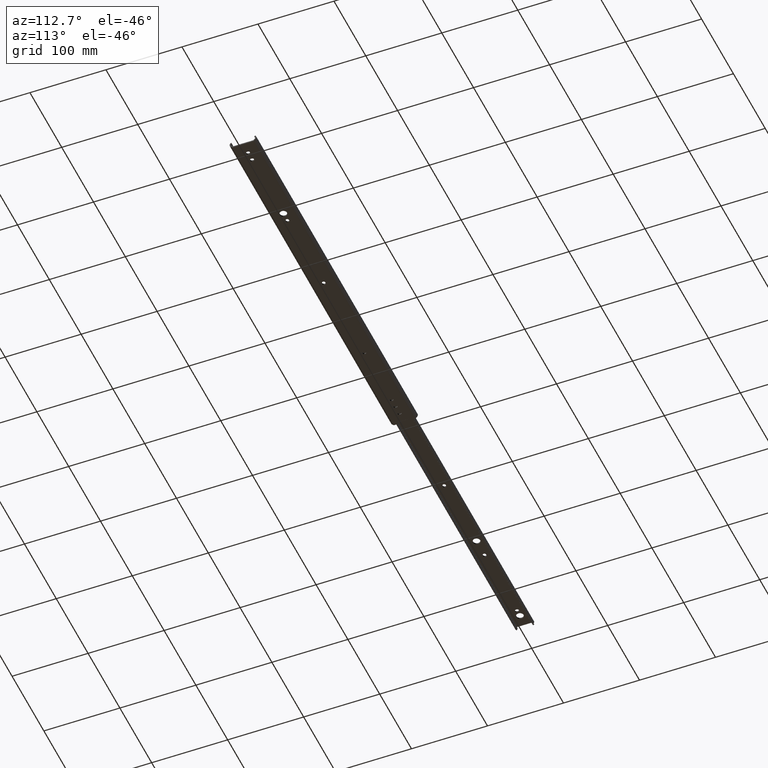
[diagram: clean part render]
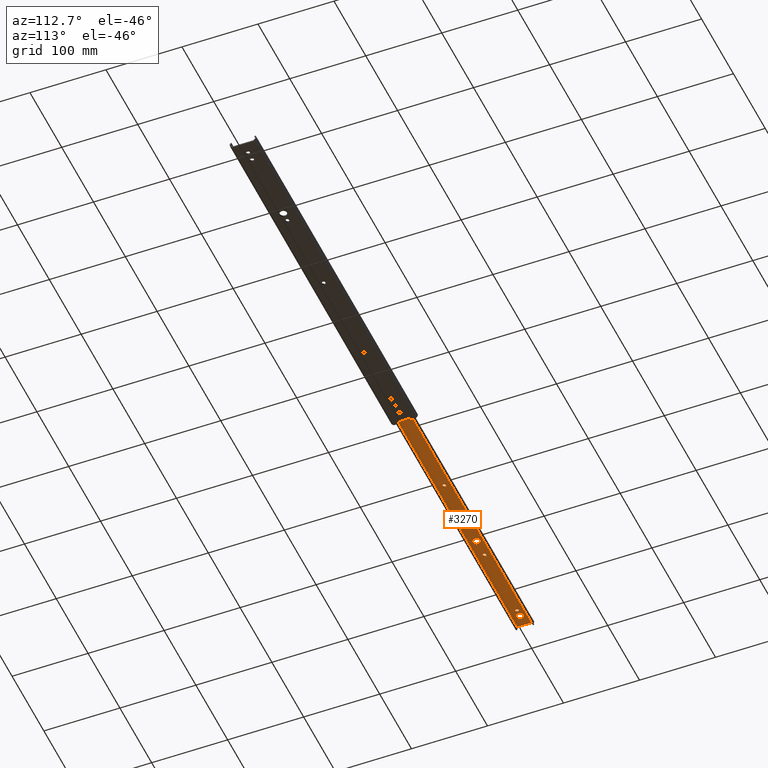
[diagram: same view with one face highlighted and labeled with its STEP entity id]
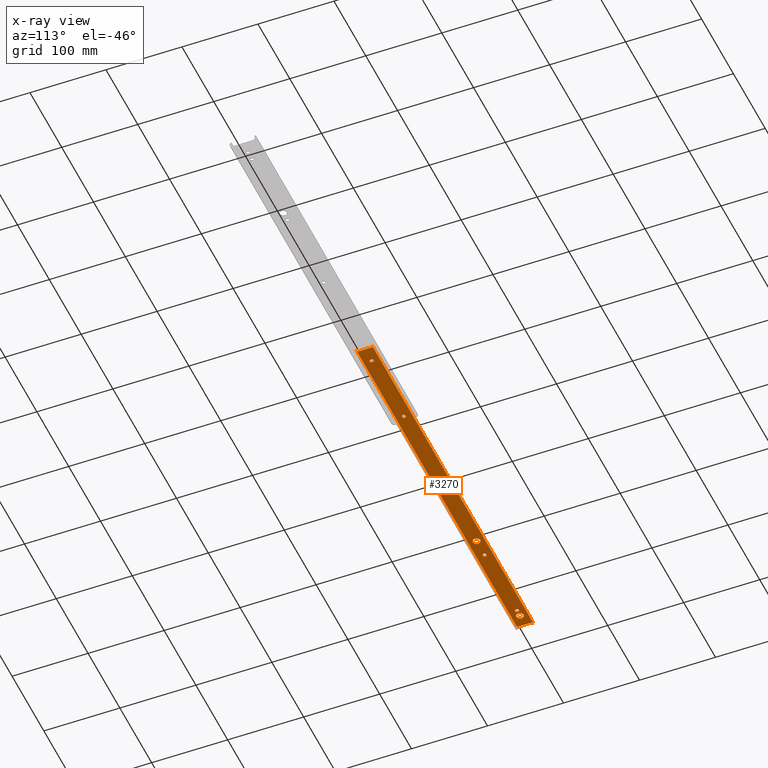
[diagram: x-ray of the same camera — body ghosted, the highlighted face saturated]
A machine part, auxiliary view. The second image highlights one B-rep face of the part: STEP entity #3270.
The next image is the same camera in x-ray: the body ghosted, the highlighted face saturated — about 0% of this face is hidden behind the body in this view.
In plain terms, the highlighted planar face has unit normal (0, 0, 1).
Its self-contained STEP definition (entity closure, byte-faithful):
#5 = AXIS2_PLACEMENT_3D ( 'NONE', #2055, #152, #2364 ) ;
#19 = VERTEX_POINT ( 'NONE', #2916 ) ;
#59 = ORIENTED_EDGE ( 'NONE', *, *, #1475, .T. ) ;
#63 = CARTESIAN_POINT ( 'NONE',  ( 380.5999999999999700, 2.249999999999947200, -1.599999999999894800 ) ) ;
#72 = VECTOR ( 'NONE', #2664, 1000.000000000000000 ) ;
#91 = CARTESIAN_POINT ( 'NONE',  ( 0.0000000000000000000, 0.0000000000000000000, -1.599999999999893100 ) ) ;
#92 = VERTEX_POINT ( 'NONE', #785 ) ;
#112 = FACE_BOUND ( 'NONE', #3328, .T. ) ;
#122 = LINE ( 'NONE', #3139, #1618 ) ;
#125 = CARTESIAN_POINT ( 'NONE',  ( 254.4000000000000100, 2.249999999999965800, -1.599999999999894800 ) ) ;
#127 = AXIS2_PLACEMENT_3D ( 'NONE', #1714, #3367, #3952 ) ;
#140 = EDGE_CURVE ( 'NONE', #2532, #3894, #1127, .T. ) ;
#152 = DIRECTION ( 'NONE',  ( 0.0000000000000000000, 0.0000000000000000000, 1.000000000000000000 ) ) ;
#167 = CARTESIAN_POINT ( 'NONE',  ( 505.0000000000000000, 2.249999999999947200, -1.599999999999893100 ) ) ;
#188 = CARTESIAN_POINT ( 'NONE',  ( 484.8499999999999700, 0.0000000000000000000, -1.599999999999893100 ) ) ;
#229 = ORIENTED_EDGE ( 'NONE', *, *, #3035, .T. ) ;
#236 = CARTESIAN_POINT ( 'NONE',  ( 254.4000000000000100, -2.250000000000033800, -1.599999999999893100 ) ) ;
#239 = CARTESIAN_POINT ( 'NONE',  ( 505.0000000000000000, 9.799999999999993600, -1.599999999999893100 ) ) ;
#253 = CARTESIAN_POINT ( 'NONE',  ( 20.65000000000000200, 0.0000000000000000000, -1.599999999999893100 ) ) ;
#254 = CIRCLE ( 'NONE', #1921, 2.250000000000001800 ) ;
#256 = LINE ( 'NONE', #3753, #1854 ) ;
#258 = DIRECTION ( 'NONE',  ( -1.000000000000000000, -0.0000000000000000000, 0.0000000000000000000 ) ) ;
#281 = CARTESIAN_POINT ( 'NONE',  ( 505.0000000000000000, -2.250000000000052400, -1.599999999999893100 ) ) ;
#288 = CARTESIAN_POINT ( 'NONE',  ( 27.65000000000000200, 0.3999999999999960800, -1.599999999999894800 ) ) ;
#293 = EDGE_CURVE ( 'NONE', #1215, #1896, #3159, .T. ) ;
#295 = CARTESIAN_POINT ( 'NONE',  ( 15.90000000000000000, 0.0000000000000000000, -1.599999999999893100 ) ) ;
#322 = EDGE_CURVE ( 'NONE', #2313, #2024, #1366, .T. ) ;
#326 = ORIENTED_EDGE ( 'NONE', *, *, #140, .T. ) ;
#335 = VERTEX_POINT ( 'NONE', #2302 ) ;
#336 = EDGE_LOOP ( 'NONE', ( #229, #1002, #1783, #1919, #452, #2622, #3174, #2795, #3489, #1497 ) ) ;
#352 = DIRECTION ( 'NONE',  ( 0.0000000000000000000, 0.0000000000000000000, 1.000000000000000000 ) ) ;
#401 = VECTOR ( 'NONE', #3581, 1000.000000000000000 ) ;
#408 = CIRCLE ( 'NONE', #2540, 2.250000000000001800 ) ;
#422 = CARTESIAN_POINT ( 'NONE',  ( 503.3999999999999800, 9.799999999999993600, -1.599999999999894800 ) ) ;
#431 = CARTESIAN_POINT ( 'NONE',  ( 152.4000000000000100, 0.0000000000000000000, -1.599999999999893100 ) ) ;
#452 = ORIENTED_EDGE ( 'NONE', *, *, #586, .F. ) ;
#470 = DIRECTION ( 'NONE',  ( 0.0000000000000000000, 1.000000000000000000, 0.0000000000000000000 ) ) ;
#487 = CARTESIAN_POINT ( 'NONE',  ( 383.6500000000000300, 5.247495259473523100E-014, -1.599999999999893100 ) ) ;
#492 = VERTEX_POINT ( 'NONE', #3745 ) ;
#511 = LINE ( 'NONE', #281, #3721 ) ;
#547 = ORIENTED_EDGE ( 'NONE', *, *, #2037, .T. ) ;
#572 = CARTESIAN_POINT ( 'NONE',  ( 484.8499999999999700, -0.4000000000000090200, -1.599999999999894800 ) ) ;
#585 = DIRECTION ( 'NONE',  ( 1.000000000000000000, 0.0000000000000000000, 0.0000000000000000000 ) ) ;
#586 = EDGE_CURVE ( 'NONE', #4108, #3136, #3155, .T. ) ;
#627 = EDGE_CURVE ( 'NONE', #1146, #3136, #1476, .T. ) ;
#636 = DIRECTION ( 'NONE',  ( 1.000000000000000000, 0.0000000000000000000, -0.0000000000000000000 ) ) ;
#649 = DIRECTION ( 'NONE',  ( 1.000000000000000000, 0.0000000000000000000, -0.0000000000000000000 ) ) ;
#650 = LINE ( 'NONE', #188, #3866 ) ;
#677 = CARTESIAN_POINT ( 'NONE',  ( 25.39999999999999900, -0.3999999999999999700, -1.599999999999893100 ) ) ;
#697 = DIRECTION ( 'NONE',  ( 1.000000000000000000, 0.0000000000000000000, 0.0000000000000000000 ) ) ;
#711 = LINE ( 'NONE', #239, #1474 ) ;
#743 = AXIS2_PLACEMENT_3D ( 'NONE', #1717, #3966, #2023 ) ;
#755 = DIRECTION ( 'NONE',  ( 1.000000000000000000, 0.0000000000000000000, 0.0000000000000000000 ) ) ;
#757 = CIRCLE ( 'NONE', #3909, 2.249999999999974200 ) ;
#785 = CARTESIAN_POINT ( 'NONE',  ( 256.6499999999999800, 7.078553336297639100E-015, -1.599999999999893100 ) ) ;
#786 = CARTESIAN_POINT ( 'NONE',  ( 482.5999999999999700, 0.3999999999999867600, -1.599999999999893100 ) ) ;
#806 = CARTESIAN_POINT ( 'NONE',  ( 23.15000000000000600, -0.3999999999999946900, -1.599999999999893100 ) ) ;
#817 = DIRECTION ( 'NONE',  ( -1.000000000000000000, -0.0000000000000000000, 0.0000000000000000000 ) ) ;
#819 = LINE ( 'NONE', #2051, #2280 ) ;
#824 = LINE ( 'NONE', #1621, #4128 ) ;
#835 = EDGE_LOOP ( 'NONE', ( #3396, #1079 ) ) ;
#837 = CARTESIAN_POINT ( 'NONE',  ( 503.3999999999999800, -8.199999999999999300, -1.599999999999893100 ) ) ;
#838 = CARTESIAN_POINT ( 'NONE',  ( 505.0000000000000000, -9.800000000000007800, -1.599999999999894800 ) ) ;
#887 = CARTESIAN_POINT ( 'NONE',  ( 147.6500000000000100, 5.817072295949932400E-016, -1.599999999999893100 ) ) ;
#895 = CARTESIAN_POINT ( 'NONE',  ( 23.14999999999999900, 0.3999999999999951400, -1.599999999999894800 ) ) ;
#898 = EDGE_CURVE ( 'NONE', #3372, #2024, #925, .T. ) ;
#913 = VECTOR ( 'NONE', #3630, 1000.000000000000000 ) ;
#925 = LINE ( 'NONE', #91, #72 ) ;
#961 = FACE_BOUND ( 'NONE', #3157, .T. ) ;
#963 = CIRCLE ( 'NONE', #127, 4.750000000000004400 ) ;
#966 = CIRCLE ( 'NONE', #1189, 4.750000000000004400 ) ;
#969 = ORIENTED_EDGE ( 'NONE', *, *, #2826, .T. ) ;
#973 = VECTOR ( 'NONE', #258, 1000.000000000000000 ) ;
#978 = EDGE_CURVE ( 'NONE', #4108, #3372, #3930, .T. ) ;
#980 = DIRECTION ( 'NONE',  ( 1.000000000000000000, 0.0000000000000000000, 0.0000000000000000000 ) ) ;
#984 = EDGE_CURVE ( 'NONE', #92, #1573, #1365, .T. ) ;
#988 = CARTESIAN_POINT ( 'NONE',  ( 126.5999999999999900, 2.476904576198428100E-015, -1.599999999999893100 ) ) ;
#1002 = ORIENTED_EDGE ( 'NONE', *, *, #2216, .T. ) ;
#1004 = DIRECTION ( 'NONE',  ( 1.000000000000000000, 0.0000000000000000000, 0.0000000000000000000 ) ) ;
#1006 = CIRCLE ( 'NONE', #2783, 2.249999999999974200 ) ;
#1042 = DIRECTION ( 'NONE',  ( 0.0000000000000000000, 0.0000000000000000000, 1.000000000000000000 ) ) ;
#1045 = ORIENTED_EDGE ( 'NONE', *, *, #3331, .T. ) ;
#1050 = ORIENTED_EDGE ( 'NONE', *, *, #3205, .T. ) ;
#1079 = ORIENTED_EDGE ( 'NONE', *, *, #1659, .T. ) ;
#1088 = CARTESIAN_POINT ( 'NONE',  ( 254.4000000000000100, 7.078553336297639100E-015, -1.599999999999893100 ) ) ;
#1107 = DIRECTION ( 'NONE',  ( 1.000000000000000000, 0.0000000000000000000, 0.0000000000000000000 ) ) ;
#1115 = LINE ( 'NONE', #2648, #913 ) ;
#1117 = DIRECTION ( 'NONE',  ( 0.0000000000000000000, 0.0000000000000000000, 1.000000000000000000 ) ) ;
#1127 = LINE ( 'NONE', #2036, #3564 ) ;
#1139 = CARTESIAN_POINT ( 'NONE',  ( 11.15000000000000000, 5.817072295949927400E-016, -1.599999999999893100 ) ) ;
#1146 = VERTEX_POINT ( 'NONE', #2320 ) ;
#1158 = DIRECTION ( 'NONE',  ( 1.000000000000000000, 0.0000000000000000000, 0.0000000000000000000 ) ) ;
#1186 = ORIENTED_EDGE ( 'NONE', *, *, #2402, .T. ) ;
#1189 = AXIS2_PLACEMENT_3D ( 'NONE', #431, #2659, #755 ) ;
#1193 = VERTEX_POINT ( 'NONE', #422 ) ;
#1196 = VERTEX_POINT ( 'NONE', #253 ) ;
#1206 = DIRECTION ( 'NONE',  ( 0.0000000000000000000, 0.0000000000000000000, 1.000000000000000000 ) ) ;
#1207 = ORIENTED_EDGE ( 'NONE', *, *, #3633, .T. ) ;
#1215 = VERTEX_POINT ( 'NONE', #2722 ) ;
#1217 = DIRECTION ( 'NONE',  ( 0.0000000000000000000, 0.0000000000000000000, 1.000000000000000000 ) ) ;
#1241 = AXIS2_PLACEMENT_3D ( 'NONE', #3496, #2537, #636 ) ;
#1280 = ORIENTED_EDGE ( 'NONE', *, *, #3950, .T. ) ;
#1281 = AXIS2_PLACEMENT_3D ( 'NONE', #3462, #1042, #2575 ) ;
#1310 = LINE ( 'NONE', #2476, #1859 ) ;
#1311 = CARTESIAN_POINT ( 'NONE',  ( 505.0000000000000000, 10.42509259386300400, -1.599999999999893100 ) ) ;
#1325 = DIRECTION ( 'NONE',  ( -1.000000000000000000, -0.0000000000000000000, -0.0000000000000000000 ) ) ;
#1327 = DIRECTION ( 'NONE',  ( 0.0000000000000000000, 0.0000000000000000000, 1.000000000000000000 ) ) ;
#1345 = VECTOR ( 'NONE', #4144, 1000.000000000000000 ) ;
#1365 = CIRCLE ( 'NONE', #1860, 2.249999999999974200 ) ;
#1366 = LINE ( 'NONE', #1311, #3826 ) ;
#1381 = EDGE_CURVE ( 'NONE', #1832, #2420, #824, .T. ) ;
#1391 = EDGE_CURVE ( 'NONE', #2246, #1193, #711, .T. ) ;
#1395 = DIRECTION ( 'NONE',  ( 0.0000000000000000000, 0.0000000000000000000, 1.000000000000000000 ) ) ;
#1411 = CARTESIAN_POINT ( 'NONE',  ( 503.3999999999999800, 0.0000000000000000000, -1.599999999999893100 ) ) ;
#1436 = EDGE_CURVE ( 'NONE', #3833, #1215, #3821, .T. ) ;
#1469 = VERTEX_POINT ( 'NONE', #572 ) ;
#1474 = VECTOR ( 'NONE', #1514, 1000.000000000000000 ) ;
#1475 = EDGE_CURVE ( 'NONE', #3156, #1832, #408, .T. ) ;
#1476 = LINE ( 'NONE', #2463, #2192 ) ;
#1495 = DIRECTION ( 'NONE',  ( 0.0000000000000000000, 0.0000000000000000000, 1.000000000000000000 ) ) ;
#1497 = ORIENTED_EDGE ( 'NONE', *, *, #1391, .T. ) ;
#1514 = DIRECTION ( 'NONE',  ( -1.000000000000000000, -1.084202172485473700E-015, 0.0000000000000000000 ) ) ;
#1546 = DIRECTION ( 'NONE',  ( 0.0000000000000000000, 0.0000000000000000000, 1.000000000000000000 ) ) ;
#1573 = VERTEX_POINT ( 'NONE', #125 ) ;
#1588 = CARTESIAN_POINT ( 'NONE',  ( 505.0000000000000000, -10.42509259386300400, -1.599999999999893100 ) ) ;
#1600 = EDGE_CURVE ( 'NONE', #2455, #19, #963, .T. ) ;
#1607 = CIRCLE ( 'NONE', #2723, 2.250000000000001800 ) ;
#1618 = VECTOR ( 'NONE', #2491, 1000.000000000000000 ) ;
#1621 = CARTESIAN_POINT ( 'NONE',  ( 505.0000000000000000, -2.250000000000005800, -1.599999999999893100 ) ) ;
#1623 = AXIS2_PLACEMENT_3D ( 'NONE', #295, #1217, #697 ) ;
#1633 = VERTEX_POINT ( 'NONE', #236 ) ;
#1651 = ORIENTED_EDGE ( 'NONE', *, *, #1600, .T. ) ;
#1659 = EDGE_CURVE ( 'NONE', #2081, #1196, #3104, .T. ) ;
#1695 = CIRCLE ( 'NONE', #3948, 2.249999999999974200 ) ;
#1701 = FACE_OUTER_BOUND ( 'NONE', #336, .T. ) ;
#1714 = CARTESIAN_POINT ( 'NONE',  ( 152.4000000000000100, 0.0000000000000000000, -1.599999999999893100 ) ) ;
#1717 = CARTESIAN_POINT ( 'NONE',  ( 253.5999999999999900, 6.931595720399953300E-015, -1.599999999999893100 ) ) ;
#1749 = EDGE_CURVE ( 'NONE', #492, #3156, #1310, .T. ) ;
#1783 = ORIENTED_EDGE ( 'NONE', *, *, #4076, .T. ) ;
#1803 = FACE_BOUND ( 'NONE', #2831, .T. ) ;
#1804 = AXIS2_PLACEMENT_3D ( 'NONE', #3457, #1546, #3788 ) ;
#1812 = CIRCLE ( 'NONE', #743, 2.249999999999974200 ) ;
#1828 = DIRECTION ( 'NONE',  ( 0.0000000000000000000, 0.0000000000000000000, 1.000000000000000000 ) ) ;
#1832 = VERTEX_POINT ( 'NONE', #2835 ) ;
#1842 = VERTEX_POINT ( 'NONE', #1969 ) ;
#1849 = ORIENTED_EDGE ( 'NONE', *, *, #3845, .T. ) ;
#1854 = VECTOR ( 'NONE', #2125, 1000.000000000000000 ) ;
#1859 = VECTOR ( 'NONE', #3430, 1000.000000000000000 ) ;
#1860 = AXIS2_PLACEMENT_3D ( 'NONE', #1088, #1117, #1158 ) ;
#1863 = LINE ( 'NONE', #1411, #3463 ) ;
#1883 = ORIENTED_EDGE ( 'NONE', *, *, #3768, .T. ) ;
#1896 = VERTEX_POINT ( 'NONE', #63 ) ;
#1919 = ORIENTED_EDGE ( 'NONE', *, *, #627, .T. ) ;
#1921 = AXIS2_PLACEMENT_3D ( 'NONE', #3749, #1828, #4081 ) ;
#1957 = VERTEX_POINT ( 'NONE', #895 ) ;
#1963 = CARTESIAN_POINT ( 'NONE',  ( 381.4000000000000900, -2.250000000000052400, -1.599999999999893100 ) ) ;
#1969 = CARTESIAN_POINT ( 'NONE',  ( 253.5999999999999900, 2.249999999999965800, -1.599999999999894800 ) ) ;
#1976 = ORIENTED_EDGE ( 'NONE', *, *, #984, .T. ) ;
#1977 = CARTESIAN_POINT ( 'NONE',  ( 23.15000000000000600, 0.0000000000000000000, -1.599999999999893100 ) ) ;
#1986 = CIRCLE ( 'NONE', #2855, 2.250000000000001800 ) ;
#1989 = FACE_BOUND ( 'NONE', #3230, .T. ) ;
#2002 = ORIENTED_EDGE ( 'NONE', *, *, #3711, .T. ) ;
#2021 = DIRECTION ( 'NONE',  ( 0.0000000000000000000, -1.000000000000000000, 0.0000000000000000000 ) ) ;
#2023 = DIRECTION ( 'NONE',  ( 1.000000000000000000, 0.0000000000000000000, 0.0000000000000000000 ) ) ;
#2024 = VERTEX_POINT ( 'NONE', #2523 ) ;
#2026 = VERTEX_POINT ( 'NONE', #288 ) ;
#2036 = CARTESIAN_POINT ( 'NONE',  ( 480.3500000000000200, 0.0000000000000000000, -1.599999999999893100 ) ) ;
#2037 = EDGE_CURVE ( 'NONE', #1633, #92, #757, .T. ) ;
#2051 = CARTESIAN_POINT ( 'NONE',  ( 27.65000000000000900, 0.0000000000000000000, -1.599999999999893100 ) ) ;
#2055 = CARTESIAN_POINT ( 'NONE',  ( 482.5999999999999700, -0.4000000000000092900, -1.599999999999893100 ) ) ;
#2069 = CARTESIAN_POINT ( 'NONE',  ( 505.0000000000000000, 10.42509259386300400, -1.599999999999893100 ) ) ;
#2081 = VERTEX_POINT ( 'NONE', #1139 ) ;
#2095 = LINE ( 'NONE', #1977, #401 ) ;
#2112 = ORIENTED_EDGE ( 'NONE', *, *, #293, .T. ) ;
#2117 = ORIENTED_EDGE ( 'NONE', *, *, #1436, .T. ) ;
#2125 = DIRECTION ( 'NONE',  ( 0.0000000000000000000, -1.000000000000000000, 0.0000000000000000000 ) ) ;
#2157 = CARTESIAN_POINT ( 'NONE',  ( 505.0000000000000000, 2.249999999999965800, -1.599999999999893100 ) ) ;
#2192 = VECTOR ( 'NONE', #585, 1000.000000000000000 ) ;
#2197 = VECTOR ( 'NONE', #817, 1000.000000000000000 ) ;
#2209 = PLANE ( 'NONE',  #1241 ) ;
#2216 = EDGE_CURVE ( 'NONE', #3537, #3854, #256, .T. ) ;
#2246 = VERTEX_POINT ( 'NONE', #3585 ) ;
#2280 = VECTOR ( 'NONE', #470, 1000.000000000000000 ) ;
#2288 = VECTOR ( 'NONE', #3074, 1000.000000000000000 ) ;
#2302 = CARTESIAN_POINT ( 'NONE',  ( 380.5999999999999700, -2.250000000000052400, -1.599999999999894800 ) ) ;
#2313 = VERTEX_POINT ( 'NONE', #2069 ) ;
#2320 = CARTESIAN_POINT ( 'NONE',  ( 503.3999999999999800, -9.800000000000007800, -1.599999999999894800 ) ) ;
#2364 = DIRECTION ( 'NONE',  ( 1.000000000000000000, 0.0000000000000000000, 0.0000000000000000000 ) ) ;
#2402 = EDGE_CURVE ( 'NONE', #3911, #492, #3401, .T. ) ;
#2415 = ORIENTED_EDGE ( 'NONE', *, *, #3939, .T. ) ;
#2420 = VERTEX_POINT ( 'NONE', #4063 ) ;
#2425 = DIRECTION ( 'NONE',  ( 1.000000000000000000, 0.0000000000000000000, 0.0000000000000000000 ) ) ;
#2455 = VERTEX_POINT ( 'NONE', #887 ) ;
#2463 = CARTESIAN_POINT ( 'NONE',  ( 505.0000000000000000, -9.800000000000007800, -1.599999999999893100 ) ) ;
#2476 = CARTESIAN_POINT ( 'NONE',  ( 505.0000000000000000, 2.249999999999993800, -1.599999999999893100 ) ) ;
#2488 = EDGE_CURVE ( 'NONE', #1573, #1842, #2654, .T. ) ;
#2491 = DIRECTION ( 'NONE',  ( 1.000000000000000000, 0.0000000000000000000, -0.0000000000000000000 ) ) ;
#2499 = DIRECTION ( 'NONE',  ( 1.000000000000000000, 0.0000000000000000000, -0.0000000000000000000 ) ) ;
#2517 = EDGE_CURVE ( 'NONE', #1196, #2081, #2555, .T. ) ;
#2518 = ORIENTED_EDGE ( 'NONE', *, *, #2541, .T. ) ;
#2523 = CARTESIAN_POINT ( 'NONE',  ( 0.0000000000000000000, 10.42509259386300400, -1.599999999999893100 ) ) ;
#2532 = VERTEX_POINT ( 'NONE', #3125 ) ;
#2537 = DIRECTION ( 'NONE',  ( 0.0000000000000000000, 0.0000000000000000000, 1.000000000000000000 ) ) ;
#2540 = AXIS2_PLACEMENT_3D ( 'NONE', #988, #352, #980 ) ;
#2541 = EDGE_CURVE ( 'NONE', #3422, #1633, #122, .T. ) ;
#2544 = FACE_BOUND ( 'NONE', #835, .T. ) ;
#2555 = CIRCLE ( 'NONE', #1804, 4.750000000000000900 ) ;
#2575 = DIRECTION ( 'NONE',  ( 1.000000000000000000, 0.0000000000000000000, 0.0000000000000000000 ) ) ;
#2616 = CARTESIAN_POINT ( 'NONE',  ( 253.5999999999999900, -2.250000000000033800, -1.599999999999894800 ) ) ;
#2622 = ORIENTED_EDGE ( 'NONE', *, *, #978, .T. ) ;
#2625 = ORIENTED_EDGE ( 'NONE', *, *, #1381, .T. ) ;
#2644 = CARTESIAN_POINT ( 'NONE',  ( 505.0000000000000000, -10.42509259386300400, -1.599999999999893100 ) ) ;
#2648 = CARTESIAN_POINT ( 'NONE',  ( 505.0000000000000000, 0.0000000000000000000, -1.599999999999893100 ) ) ;
#2654 = LINE ( 'NONE', #2157, #973 ) ;
#2659 = DIRECTION ( 'NONE',  ( 0.0000000000000000000, 0.0000000000000000000, 1.000000000000000000 ) ) ;
#2664 = DIRECTION ( 'NONE',  ( 0.0000000000000000000, 1.000000000000000000, 0.0000000000000000000 ) ) ;
#2666 = CARTESIAN_POINT ( 'NONE',  ( 503.3999999999999800, 8.199999999999999300, -1.599999999999893100 ) ) ;
#2681 = DIRECTION ( 'NONE',  ( 0.0000000000000000000, 0.0000000000000000000, 1.000000000000000000 ) ) ;
#2699 = EDGE_CURVE ( 'NONE', #3373, #3833, #3468, .T. ) ;
#2722 = CARTESIAN_POINT ( 'NONE',  ( 381.4000000000000900, 2.249999999999947200, -1.599999999999894800 ) ) ;
#2723 = AXIS2_PLACEMENT_3D ( 'NONE', #677, #2910, #1004 ) ;
#2729 = DIRECTION ( 'NONE',  ( 0.0000000000000000000, 1.000000000000000000, 0.0000000000000000000 ) ) ;
#2737 = ORIENTED_EDGE ( 'NONE', *, *, #3571, .T. ) ;
#2746 = EDGE_LOOP ( 'NONE', ( #969, #1651 ) ) ;
#2764 = CARTESIAN_POINT ( 'NONE',  ( 129.6500000000000100, 2.574876320130218100E-015, -1.599999999999893100 ) ) ;
#2767 = ORIENTED_EDGE ( 'NONE', *, *, #1749, .T. ) ;
#2770 = ORIENTED_EDGE ( 'NONE', *, *, #2488, .T. ) ;
#2783 = AXIS2_PLACEMENT_3D ( 'NONE', #3107, #1206, #3434 ) ;
#2795 = ORIENTED_EDGE ( 'NONE', *, *, #322, .F. ) ;
#2801 = CARTESIAN_POINT ( 'NONE',  ( 254.4000000000000100, 7.078553336297639100E-015, -1.599999999999893100 ) ) ;
#2820 = VERTEX_POINT ( 'NONE', #3289 ) ;
#2826 = EDGE_CURVE ( 'NONE', #19, #2455, #966, .T. ) ;
#2831 = EDGE_LOOP ( 'NONE', ( #1849, #1883, #326, #3612 ) ) ;
#2835 = CARTESIAN_POINT ( 'NONE',  ( 126.5999999999999900, -2.250000000000005800, -1.599999999999894800 ) ) ;
#2836 = ORIENTED_EDGE ( 'NONE', *, *, #2844, .T. ) ;
#2844 = EDGE_CURVE ( 'NONE', #1842, #3422, #1812, .T. ) ;
#2855 = AXIS2_PLACEMENT_3D ( 'NONE', #3302, #1395, #3634 ) ;
#2910 = DIRECTION ( 'NONE',  ( 0.0000000000000000000, 0.0000000000000000000, 1.000000000000000000 ) ) ;
#2913 = VERTEX_POINT ( 'NONE', #806 ) ;
#2916 = CARTESIAN_POINT ( 'NONE',  ( 157.1500000000000100, 0.0000000000000000000, -1.599999999999893100 ) ) ;
#2993 = CARTESIAN_POINT ( 'NONE',  ( 27.65000000000000200, -0.3999999999999999700, -1.599999999999894800 ) ) ;
#3010 = DIRECTION ( 'NONE',  ( 0.0000000000000000000, 0.0000000000000000000, 1.000000000000000000 ) ) ;
#3035 = EDGE_CURVE ( 'NONE', #1193, #3537, #1863, .T. ) ;
#3052 = CARTESIAN_POINT ( 'NONE',  ( 126.5999999999999900, 2.249999999999993800, -1.599999999999894800 ) ) ;
#3065 = VECTOR ( 'NONE', #4050, 1000.000000000000000 ) ;
#3074 = DIRECTION ( 'NONE',  ( 0.0000000000000000000, 1.000000000000000000, 0.0000000000000000000 ) ) ;
#3104 = CIRCLE ( 'NONE', #1623, 4.750000000000000900 ) ;
#3107 = CARTESIAN_POINT ( 'NONE',  ( 380.5999999999999700, -6.162975822039154700E-030, -1.599999999999893100 ) ) ;
#3125 = CARTESIAN_POINT ( 'NONE',  ( 480.3500000000000200, 0.4000000000000092900, -1.599999999999894800 ) ) ;
#3136 = VERTEX_POINT ( 'NONE', #838 ) ;
#3139 = CARTESIAN_POINT ( 'NONE',  ( 505.0000000000000000, -2.250000000000033800, -1.599999999999893100 ) ) ;
#3151 = CARTESIAN_POINT ( 'NONE',  ( 505.0000000000000000, 0.0000000000000000000, -1.599999999999893100 ) ) ;
#3155 = LINE ( 'NONE', #3151, #2288 ) ;
#3156 = VERTEX_POINT ( 'NONE', #3052 ) ;
#3157 = EDGE_LOOP ( 'NONE', ( #2112, #1280, #1050, #3699, #2117 ) ) ;
#3159 = LINE ( 'NONE', #167, #2197 ) ;
#3171 = AXIS2_PLACEMENT_3D ( 'NONE', #3226, #1327, #3561 ) ;
#3174 = ORIENTED_EDGE ( 'NONE', *, *, #898, .T. ) ;
#3205 = EDGE_CURVE ( 'NONE', #335, #3373, #511, .T. ) ;
#3226 = CARTESIAN_POINT ( 'NONE',  ( 381.4000000000000900, 5.247495259473523100E-014, -1.599999999999893100 ) ) ;
#3230 = EDGE_LOOP ( 'NONE', ( #2770, #2836, #2518, #547, #1976 ) ) ;
#3270 = ADVANCED_FACE ( 'NONE', ( #961, #1989, #3502, #1803, #112, #3408, #2544, #1701 ), #2209, .F. ) ;
#3289 = CARTESIAN_POINT ( 'NONE',  ( 484.8499999999999700, 0.4000000000000090200, -1.599999999999894800 ) ) ;
#3296 = CIRCLE ( 'NONE', #5, 2.249999999999974200 ) ;
#3302 = CARTESIAN_POINT ( 'NONE',  ( 127.4000000000000200, 2.574876320130218100E-015, -1.599999999999893100 ) ) ;
#3319 = DIRECTION ( 'NONE',  ( 0.0000000000000000000, -1.000000000000000000, 0.0000000000000000000 ) ) ;
#3328 = EDGE_LOOP ( 'NONE', ( #2737, #2415, #1207, #1045 ) ) ;
#3331 = EDGE_CURVE ( 'NONE', #2913, #3530, #1607, .T. ) ;
#3367 = DIRECTION ( 'NONE',  ( 0.0000000000000000000, 0.0000000000000000000, 1.000000000000000000 ) ) ;
#3372 = VERTEX_POINT ( 'NONE', #3902 ) ;
#3373 = VERTEX_POINT ( 'NONE', #1963 ) ;
#3396 = ORIENTED_EDGE ( 'NONE', *, *, #2517, .T. ) ;
#3400 = CARTESIAN_POINT ( 'NONE',  ( 127.4000000000000200, 2.574876320130218100E-015, -1.599999999999893100 ) ) ;
#3401 = CIRCLE ( 'NONE', #4051, 2.250000000000001800 ) ;
#3408 = FACE_BOUND ( 'NONE', #2746, .T. ) ;
#3422 = VERTEX_POINT ( 'NONE', #2616 ) ;
#3430 = DIRECTION ( 'NONE',  ( -1.000000000000000000, -0.0000000000000000000, 0.0000000000000000000 ) ) ;
#3434 = DIRECTION ( 'NONE',  ( 1.000000000000000000, 0.0000000000000000000, 0.0000000000000000000 ) ) ;
#3457 = CARTESIAN_POINT ( 'NONE',  ( 15.90000000000000000, 0.0000000000000000000, -1.599999999999893100 ) ) ;
#3462 = CARTESIAN_POINT ( 'NONE',  ( 381.4000000000000900, 5.247495259473523100E-014, -1.599999999999893100 ) ) ;
#3463 = VECTOR ( 'NONE', #2021, 1000.000000000000000 ) ;
#3468 = CIRCLE ( 'NONE', #3171, 2.249999999999974200 ) ;
#3489 = ORIENTED_EDGE ( 'NONE', *, *, #3524, .F. ) ;
#3496 = CARTESIAN_POINT ( 'NONE',  ( 505.0000000000000000, 0.0000000000000000000, -1.599999999999893100 ) ) ;
#3502 = FACE_BOUND ( 'NONE', #3717, .T. ) ;
#3524 = EDGE_CURVE ( 'NONE', #2246, #2313, #1115, .T. ) ;
#3530 = VERTEX_POINT ( 'NONE', #2993 ) ;
#3537 = VERTEX_POINT ( 'NONE', #2666 ) ;
#3561 = DIRECTION ( 'NONE',  ( 1.000000000000000000, 0.0000000000000000000, 0.0000000000000000000 ) ) ;
#3564 = VECTOR ( 'NONE', #3319, 1000.000000000000000 ) ;
#3571 = EDGE_CURVE ( 'NONE', #3530, #2026, #819, .T. ) ;
#3581 = DIRECTION ( 'NONE',  ( 0.0000000000000000000, -1.000000000000000000, 0.0000000000000000000 ) ) ;
#3585 = CARTESIAN_POINT ( 'NONE',  ( 505.0000000000000000, 9.799999999999993600, -1.599999999999893100 ) ) ;
#3612 = ORIENTED_EDGE ( 'NONE', *, *, #3790, .T. ) ;
#3630 = DIRECTION ( 'NONE',  ( 0.0000000000000000000, 1.000000000000000000, 0.0000000000000000000 ) ) ;
#3633 = EDGE_CURVE ( 'NONE', #1957, #2913, #2095, .T. ) ;
#3634 = DIRECTION ( 'NONE',  ( 1.000000000000000000, 0.0000000000000000000, 0.0000000000000000000 ) ) ;
#3699 = ORIENTED_EDGE ( 'NONE', *, *, #2699, .T. ) ;
#3711 = EDGE_CURVE ( 'NONE', #2420, #3911, #1986, .T. ) ;
#3717 = EDGE_LOOP ( 'NONE', ( #2767, #59, #2625, #2002, #1186 ) ) ;
#3721 = VECTOR ( 'NONE', #2499, 1000.000000000000000 ) ;
#3738 = DIRECTION ( 'NONE',  ( 1.000000000000000000, 0.0000000000000000000, 0.0000000000000000000 ) ) ;
#3745 = CARTESIAN_POINT ( 'NONE',  ( 127.4000000000000200, 2.249999999999993800, -1.599999999999894800 ) ) ;
#3749 = CARTESIAN_POINT ( 'NONE',  ( 25.39999999999999900, 0.3999999999999960800, -1.599999999999893100 ) ) ;
#3753 = CARTESIAN_POINT ( 'NONE',  ( 503.3999999999999800, 0.0000000000000000000, -1.599999999999893100 ) ) ;
#3768 = EDGE_CURVE ( 'NONE', #2820, #2532, #1695, .T. ) ;
#3788 = DIRECTION ( 'NONE',  ( 1.000000000000000000, 0.0000000000000000000, 0.0000000000000000000 ) ) ;
#3790 = EDGE_CURVE ( 'NONE', #3894, #1469, #3296, .T. ) ;
#3819 = CARTESIAN_POINT ( 'NONE',  ( 503.3999999999999800, 0.0000000000000000000, -1.599999999999893100 ) ) ;
#3821 = CIRCLE ( 'NONE', #1281, 2.249999999999974200 ) ;
#3826 = VECTOR ( 'NONE', #1325, 1000.000000000000000 ) ;
#3833 = VERTEX_POINT ( 'NONE', #487 ) ;
#3845 = EDGE_CURVE ( 'NONE', #1469, #2820, #650, .T. ) ;
#3854 = VERTEX_POINT ( 'NONE', #837 ) ;
#3866 = VECTOR ( 'NONE', #2729, 1000.000000000000000 ) ;
#3894 = VERTEX_POINT ( 'NONE', #4055 ) ;
#3902 = CARTESIAN_POINT ( 'NONE',  ( 0.0000000000000000000, -10.42509259386300400, -1.599999999999893100 ) ) ;
#3909 = AXIS2_PLACEMENT_3D ( 'NONE', #2801, #2681, #2425 ) ;
#3911 = VERTEX_POINT ( 'NONE', #2764 ) ;
#3930 = LINE ( 'NONE', #2644, #3065 ) ;
#3939 = EDGE_CURVE ( 'NONE', #2026, #1957, #254, .T. ) ;
#3948 = AXIS2_PLACEMENT_3D ( 'NONE', #786, #3010, #1107 ) ;
#3950 = EDGE_CURVE ( 'NONE', #1896, #335, #1006, .T. ) ;
#3952 = DIRECTION ( 'NONE',  ( 1.000000000000000000, 0.0000000000000000000, 0.0000000000000000000 ) ) ;
#3966 = DIRECTION ( 'NONE',  ( 0.0000000000000000000, 0.0000000000000000000, 1.000000000000000000 ) ) ;
#4050 = DIRECTION ( 'NONE',  ( -1.000000000000000000, -0.0000000000000000000, -0.0000000000000000000 ) ) ;
#4051 = AXIS2_PLACEMENT_3D ( 'NONE', #3400, #1495, #3738 ) ;
#4055 = CARTESIAN_POINT ( 'NONE',  ( 480.3500000000000200, -0.4000000000000090200, -1.599999999999893100 ) ) ;
#4063 = CARTESIAN_POINT ( 'NONE',  ( 127.4000000000000200, -2.250000000000005800, -1.599999999999893100 ) ) ;
#4076 = EDGE_CURVE ( 'NONE', #3854, #1146, #4114, .T. ) ;
#4081 = DIRECTION ( 'NONE',  ( 1.000000000000000000, 0.0000000000000000000, 0.0000000000000000000 ) ) ;
#4108 = VERTEX_POINT ( 'NONE', #1588 ) ;
#4114 = LINE ( 'NONE', #3819, #1345 ) ;
#4128 = VECTOR ( 'NONE', #649, 1000.000000000000000 ) ;
#4144 = DIRECTION ( 'NONE',  ( 0.0000000000000000000, -1.000000000000000000, 0.0000000000000000000 ) ) ;